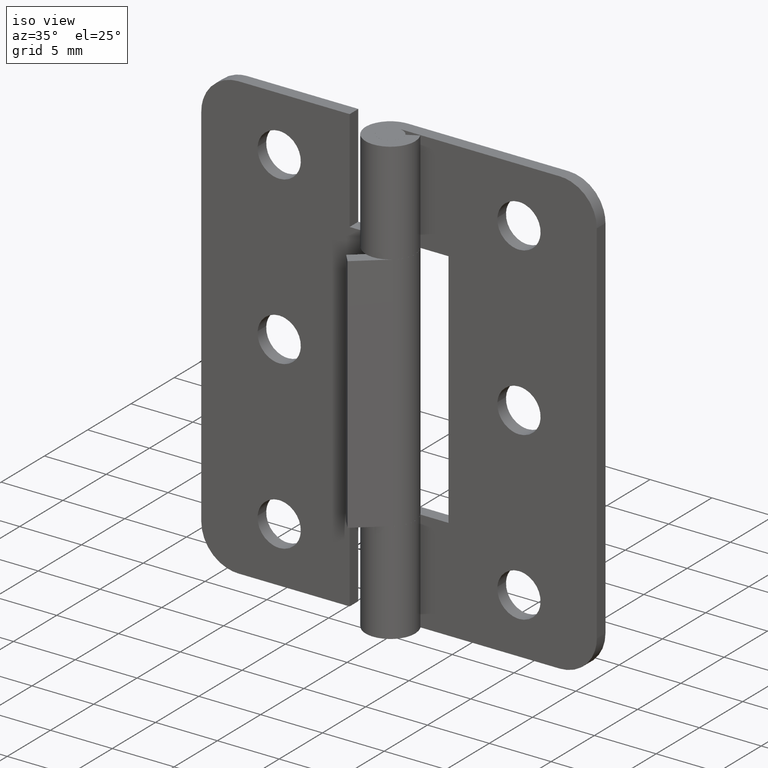
[diagram: clean part render]
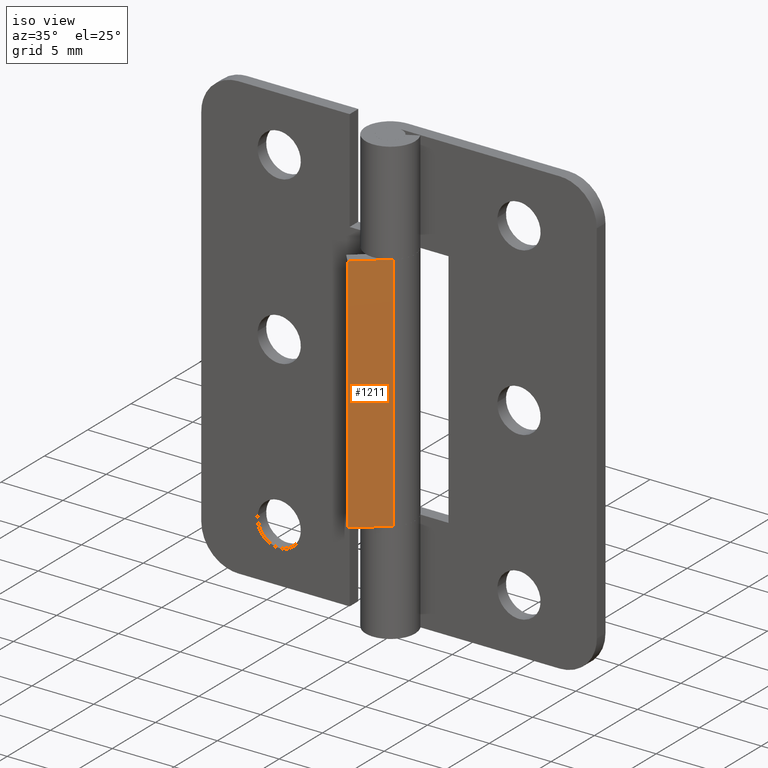
[diagram: same view with one face highlighted and labeled with its STEP entity id]
A machine part, iso view. The second image highlights one B-rep face of the part: STEP entity #1211.
In plain terms, the highlighted face is a freeform B-spline surface patch.
Its self-contained STEP definition (entity closure, byte-faithful):
#984=CARTESIAN_POINT('',(1.285577775080178,-1.532086741741440,8.250000000000091));
#985=VERTEX_POINT('',#984);
#1001=CARTESIAN_POINT('',(-1.035828000000000,-3.479984000000000,8.250000000000091));
#1002=VERTEX_POINT('',#1001);
#1003=CARTESIAN_POINT('',(1.285577775080178,-1.532086741741440,8.250000000000091));
#1004=CARTESIAN_POINT('',(-1.035828000000000,-3.479984000000000,8.250000000000091));
#1005=QUASI_UNIFORM_CURVE('',1,(#1003,#1004),.UNSPECIFIED.,.F.,.U.);
#1006=EDGE_CURVE('',#985,#1002,#1005,.T.);
#1092=CARTESIAN_POINT('',(-1.035828000000000,-3.479984000000000,27.750000000000000));
#1093=VERTEX_POINT('',#1092);
#1099=CARTESIAN_POINT('',(1.285577775080178,-1.532086741741440,27.750000000000000));
#1100=VERTEX_POINT('',#1099);
#1101=CARTESIAN_POINT('',(1.285577775080178,-1.532086741741440,27.750000000000000));
#1102=CARTESIAN_POINT('',(-1.035828000000000,-3.479984000000000,27.750000000000000));
#1103=QUASI_UNIFORM_CURVE('',1,(#1101,#1102),.UNSPECIFIED.,.F.,.U.);
#1104=EDGE_CURVE('',#1100,#1093,#1103,.T.);
#1186=CARTESIAN_POINT('',(-1.035828000000000,-3.479984000000000,27.750000000000000));
#1187=CARTESIAN_POINT('',(-1.035828000000000,-3.479984000000000,8.250000000000091));
#1188=QUASI_UNIFORM_CURVE('',1,(#1186,#1187),.UNSPECIFIED.,.F.,.U.);
#1189=EDGE_CURVE('',#1093,#1002,#1188,.T.);
#1196=CARTESIAN_POINT('',(-1.151782234028100,-3.577281484621230,7.275975037794879));
#1197=CARTESIAN_POINT('',(1.401532015993333,-1.434789181024866,7.275975037794879));
#1198=CARTESIAN_POINT('',(-1.151782234028100,-3.577281484621230,28.724025485235980));
#1199=CARTESIAN_POINT('',(1.401532015993333,-1.434789181024866,28.724025485235980));
#1200=B_SPLINE_SURFACE_WITH_KNOTS('',1,1,((#1196,#1198),(#1197,#1199)),.UNSPECIFIED.,.F.,.F.,.U.,(2,2),(2,2),(0.0,3.333119699370571),(0.0,21.448050447441101),.UNSPECIFIED.);
#1201=ORIENTED_EDGE('',*,*,#1006,.F.);
#1202=CARTESIAN_POINT('',(1.285577775080178,-1.532086741741440,27.750000000000000));
#1203=CARTESIAN_POINT('',(1.285577775080178,-1.532086741741440,8.250000000000091));
#1204=QUASI_UNIFORM_CURVE('',1,(#1202,#1203),.UNSPECIFIED.,.F.,.U.);
#1205=EDGE_CURVE('',#1100,#985,#1204,.T.);
#1206=ORIENTED_EDGE('',*,*,#1205,.F.);
#1207=ORIENTED_EDGE('',*,*,#1104,.T.);
#1208=ORIENTED_EDGE('',*,*,#1189,.T.);
#1209=EDGE_LOOP('',(#1201,#1206,#1207,#1208));
#1210=FACE_OUTER_BOUND('',#1209,.T.);
#1211=ADVANCED_FACE('',(#1210),#1200,.T.);